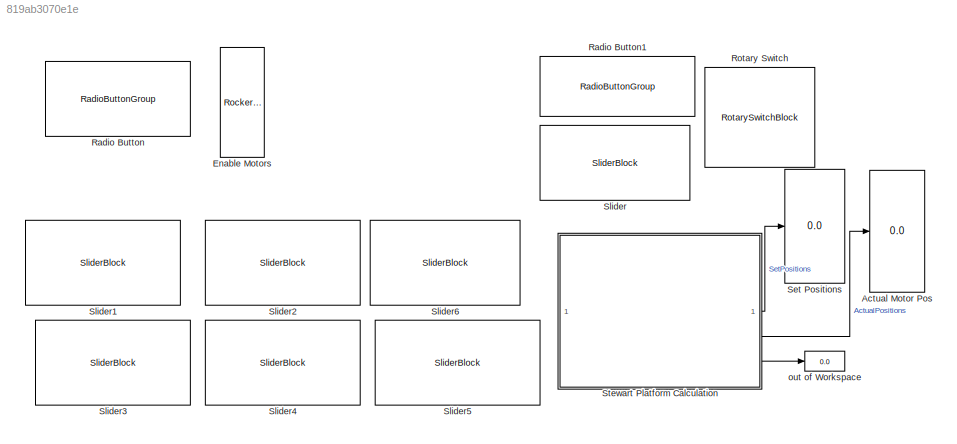
MODEL slx_819ab3070e1e
KIND model
CONFIG AbsTol = auto
CONFIG EnableMultiTasking = on
CONFIG FixedStep = 0.003
CONFIG MaxStep = auto
CONFIG MinStep = auto
CONFIG RelTol = 1e-3
CONFIG SampleTimeConstraint = Unconstrained
CONFIG SolverName = ode8
CONFIG StartTime = 0.0
CONFIG StopTime = inf
BLOCK [Display] Actual Motor Pos
  Decimation = 1
BLOCK [RockerSwitchBlock] Enable Motors
  LabelPosition = Hide
BLOCK [RadioButtonGroup] Radio Button
  ButtonGroupName = Stewart Platform
  LabelPosition = Hide
  SelectedLabel = Manual Control Mode
BLOCK [RadioButtonGroup] Radio Button1
  ButtonGroupName = Circle Mode
  LabelPosition = Hide
  SelectedLabel = Positional Circular Move
BLOCK [RotarySwitchBlock] Rotary Switch
  LabelPosition = Bottom
BLOCK [Display] Set Positions
  Decimation = 1
BLOCK [SliderBlock] Slider
  ScaleMax = 30
BLOCK [SliderBlock] Slider1
  ScaleMax = 30
  ScaleMin = -30
  TickInterval = 10
BLOCK [SliderBlock] Slider2
  ScaleMax = 30
  ScaleMin = -30
  TickInterval = 10
BLOCK [SliderBlock] Slider3
  ScaleMax = 60
  ScaleMin = -60
  TickInterval = 20
BLOCK [SliderBlock] Slider4
  ScaleMax = 60
  ScaleMin = -60
  TickInterval = 20
BLOCK [SliderBlock] Slider5
  ScaleMax = 700
  ScaleMin = 500
BLOCK [SliderBlock] Slider6
  ScaleMax = 30
  ScaleMin = -30
  TickInterval = 10
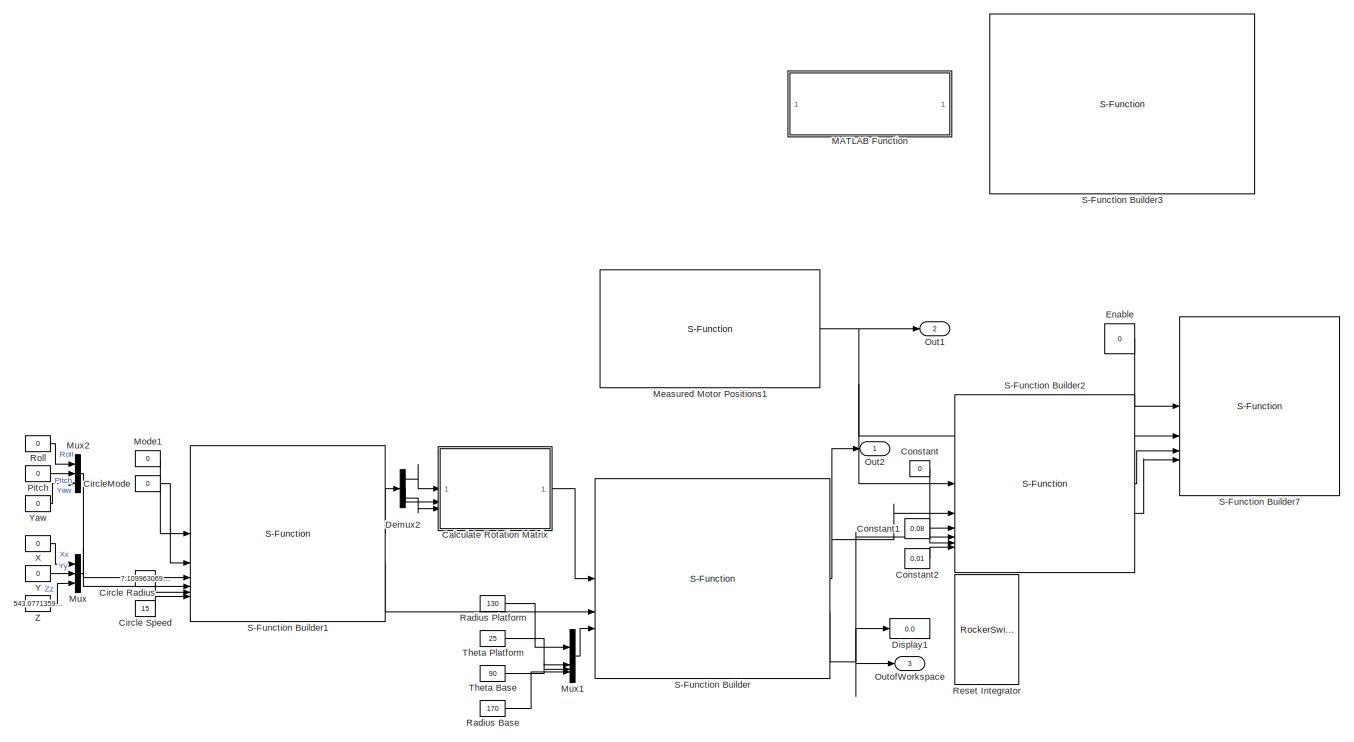
[diagram: Stewart Platform Calculation - part 1/2, full width, middle band]
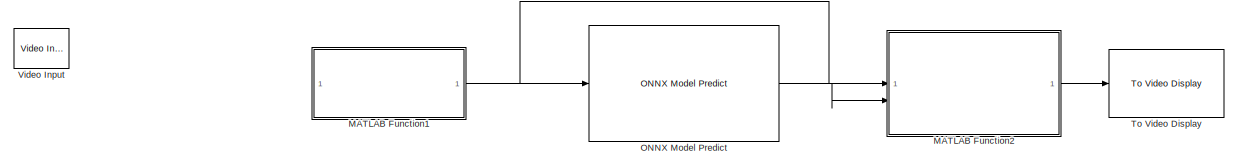
[diagram: Stewart Platform Calculation - part 2/2, full width, bottom band]
BLOCK [SubSystem] Stewart Platform Calculation
BLOCK [Constant] Stewart Platform Calculation/ X
  Value = 0
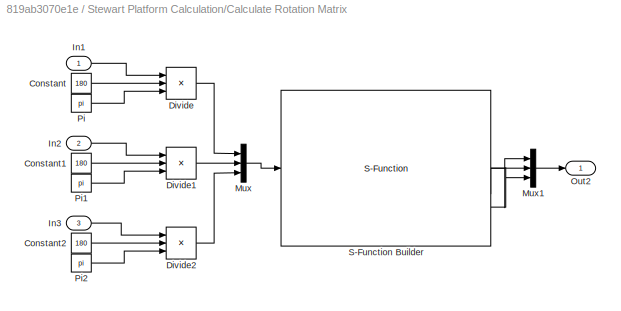
BLOCK [SubSystem] Stewart Platform Calculation/Calculate Rotation Matrix
BLOCK [Constant] Stewart Platform Calculation/Calculate Rotation Matrix/Constant
  SampleTime = -1
  Value = 180
BLOCK [Constant] Stewart Platform Calculation/Calculate Rotation Matrix/Constant1
  SampleTime = -1
  Value = 180
BLOCK [Constant] Stewart Platform Calculation/Calculate Rotation Matrix/Constant2
  SampleTime = -1
  Value = 180
BLOCK [Product] Stewart Platform Calculation/Calculate Rotation Matrix/Divide
  Inputs = */*
BLOCK [Product] Stewart Platform Calculation/Calculate Rotation Matrix/Divide1
  Inputs = */*
BLOCK [Product] Stewart Platform Calculation/Calculate Rotation Matrix/Divide2
  Inputs = */*
BLOCK [Inport] Stewart Platform Calculation/Calculate Rotation Matrix/In1
BLOCK [Inport] Stewart Platform Calculation/Calculate Rotation Matrix/In2
  Port = 2
BLOCK [Inport] Stewart Platform Calculation/Calculate Rotation Matrix/In3
  Port = 3
BLOCK [Mux] Stewart Platform Calculation/Calculate Rotation Matrix/Mux
  DisplayOption = bar
  Inputs = 3
BLOCK [Mux] Stewart Platform Calculation/Calculate Rotation Matrix/Mux1
  DisplayOption = bar
  Inputs = 3
BLOCK [Outport] Stewart Platform Calculation/Calculate Rotation Matrix/Out2
  VectorParamsAs1DForOutWhenUnconnected = off
BLOCK [Constant] Stewart Platform Calculation/Calculate Rotation Matrix/Pi
  SampleTime = -1
  Value = pi
BLOCK [Constant] Stewart Platform Calculation/Calculate Rotation Matrix/Pi1
  SampleTime = -1
  Value = pi
BLOCK [Constant] Stewart Platform Calculation/Calculate Rotation Matrix/Pi2
  SampleTime = -1
  Value = pi
BLOCK [S-Function] Stewart Platform Calculation/Calculate Rotation Matrix/S-Function Builder
  CopyFcn = set_param(gcbh,'LinkStatus','none')
  EnableBusSupport = off
  FunctionName = CalcRotationMatrix
  InitFcn = try, set_param(gcb,'FunctionName','CalcRotationMatrix'), end
  OpenFcn = sfunctionwizard(gcbh)
  PreSaveFcn = try, set_param(gcb,'FunctionName','CalcRotationMatrix'), end
  SFcnIsStateOwnerBlock = off
  SFunctionDeploymentMode = off
  SFunctionModules = CalcRotationMatrix_wrapper
BLOCK [Constant] Stewart Platform Calculation/Circle Radius
  Value = 7.109963069149833
BLOCK [Constant] Stewart Platform Calculation/Circle Speed
  Value = 15
BLOCK [Constant] Stewart Platform Calculation/CircleMode
  SampleTime = -1
  Value = 0
BLOCK [Constant] Stewart Platform Calculation/Constant
  Value = 0
BLOCK [Constant] Stewart Platform Calculation/Constant1
  Value = 0.08
BLOCK [Constant] Stewart Platform Calculation/Constant2
  Value = 0.01
BLOCK [Demux] Stewart Platform Calculation/Demux2
  Outputs = 3
BLOCK [Display] Stewart Platform Calculation/Display1
  Decimation = 1
BLOCK [Constant] Stewart Platform Calculation/Enable
  Value = 0
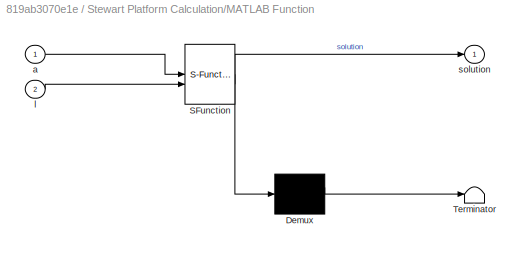
BLOCK [SubSystem] Stewart Platform Calculation/MATLAB Function
  Commented = on
  ErrorFcn = Stateflow.Translate.translate
  PermitHierarchicalResolution = ExplicitOnly
  SFBlockType = MATLAB Function
  TreatAsAtomicUnit = on
BLOCK [Demux] Stewart Platform Calculation/MATLAB Function/ Demux 
  Outputs = 1
BLOCK [S-Function] Stewart Platform Calculation/MATLAB Function/ SFunction 
  EnableBusSupport = off
  FunctionName = sf_sfun
  PortCounts = [2 2]
  SFcnIsStateOwnerBlock = off
  SFunctionDeploymentMode = off
  Tag = Stateflow S-Function 2
BLOCK [Terminator] Stewart Platform Calculation/MATLAB Function/ Terminator 
BLOCK [Inport] Stewart Platform Calculation/MATLAB Function/a
BLOCK [Inport] Stewart Platform Calculation/MATLAB Function/l
  Port = 2
BLOCK [Outport] Stewart Platform Calculation/MATLAB Function/solution
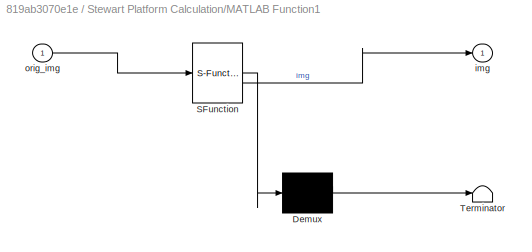
BLOCK [SubSystem] Stewart Platform Calculation/MATLAB Function1
  Commented = on
  ErrorFcn = Stateflow.Translate.translate
  PermitHierarchicalResolution = ExplicitOnly
  SFBlockType = MATLAB Function
  TreatAsAtomicUnit = on
BLOCK [Demux] Stewart Platform Calculation/MATLAB Function1/ Demux 
  Outputs = 1
BLOCK [S-Function] Stewart Platform Calculation/MATLAB Function1/ SFunction 
  EnableBusSupport = on
  FunctionName = sf_sfun
  PortCounts = [1 2]
  SFcnIsStateOwnerBlock = off
  SFunctionDeploymentMode = off
  Tag = Stateflow S-Function 1
BLOCK [Terminator] Stewart Platform Calculation/MATLAB Function1/ Terminator 
BLOCK [Outport] Stewart Platform Calculation/MATLAB Function1/img
BLOCK [Inport] Stewart Platform Calculation/MATLAB Function1/orig_img
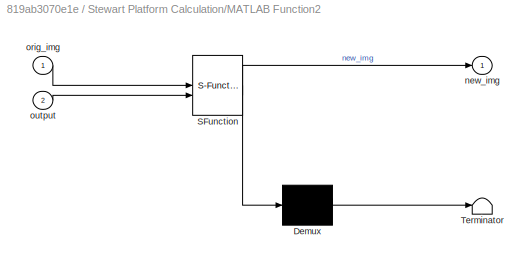
BLOCK [SubSystem] Stewart Platform Calculation/MATLAB Function2
  Commented = on
  ErrorFcn = Stateflow.Translate.translate
  PermitHierarchicalResolution = ExplicitOnly
  SFBlockType = MATLAB Function
  TreatAsAtomicUnit = on
BLOCK [Demux] Stewart Platform Calculation/MATLAB Function2/ Demux 
  Outputs = 1
BLOCK [S-Function] Stewart Platform Calculation/MATLAB Function2/ SFunction 
  EnableBusSupport = on
  FunctionName = sf_sfun
  PortCounts = [2 2]
  SFcnIsStateOwnerBlock = off
  SFunctionDeploymentMode = off
  Tag = Stateflow S-Function 3
BLOCK [Terminator] Stewart Platform Calculation/MATLAB Function2/ Terminator 
BLOCK [Outport] Stewart Platform Calculation/MATLAB Function2/new_img
BLOCK [Inport] Stewart Platform Calculation/MATLAB Function2/orig_img
BLOCK [Inport] Stewart Platform Calculation/MATLAB Function2/output
  Port = 2
BLOCK [S-Function] Stewart Platform Calculation/Measured Motor Positions1
  CopyFcn = set_param(gcbh,'LinkStatus','none')
  EnableBusSupport = off
  FunctionName = Read_Motor_Pos
  InitFcn = try, set_param(gcb,'FunctionName','Read_Motor_Pos'), end
  OpenFcn = sfunctionwizard(gcbh)
  PreSaveFcn = try, set_param(gcb,'FunctionName','Read_Motor_Pos'), end
  SFcnIsStateOwnerBlock = off
  SFunctionDeploymentMode = off
  SFunctionModules = Read_Motor_Pos_wrapper.c
BLOCK [Constant] Stewart Platform Calculation/Mode1
  SampleTime = -1
  Value = 0
BLOCK [Mux] Stewart Platform Calculation/Mux
  DisplayOption = bar
  Inputs = 3
BLOCK [Mux] Stewart Platform Calculation/Mux1
  DisplayOption = bar
BLOCK [Mux] Stewart Platform Calculation/Mux2
  DisplayOption = bar
  Inputs = 3
BLOCK [Reference] Stewart Platform Calculation/ONNX Model Predict  REF=pycoexlib/ONNX Model Predict
  Commented = on
  SourceBlock = pycoexlib/ONNX Model Predict
  SourceType = ONNXModelPredict
BLOCK [Outport] Stewart Platform Calculation/Out1
  Port = 2
  VectorParamsAs1DForOutWhenUnconnected = off
BLOCK [Outport] Stewart Platform Calculation/Out2
  VectorParamsAs1DForOutWhenUnconnected = off
BLOCK [Outport] Stewart Platform Calculation/OutofWorkspace
  Port = 3
  VectorParamsAs1DForOutWhenUnconnected = off
BLOCK [Constant] Stewart Platform Calculation/Pitch
  SampleTime = -1
  Value = 0
BLOCK [Constant] Stewart Platform Calculation/Radius Base
  Value = 170
BLOCK [Constant] Stewart Platform Calculation/Radius Platform
  Value = 130
BLOCK [RockerSwitchBlock] Stewart Platform Calculation/Reset Integrator
  LabelPosition = Hide
BLOCK [Constant] Stewart Platform Calculation/Roll
  SampleTime = -1
  Value = 0
BLOCK [S-Function] Stewart Platform Calculation/S-Function Builder
  CopyFcn = set_param(gcbh,'LinkStatus','none')
  EnableBusSupport = off
  FunctionName = Stewart_Inverse_Kin
  InitFcn = try, set_param(gcb,'FunctionName','Stewart_Inverse_Kin'), end
  OpenFcn = sfunctionwizard(gcbh)
  PreSaveFcn = try, set_param(gcb,'FunctionName','Stewart_Inverse_Kin'), end
  SFcnIsStateOwnerBlock = off
  SFunctionDeploymentMode = off
  SFunctionModules = Stewart_Inverse_Kin_wrapper
BLOCK [S-Function] Stewart Platform Calculation/S-Function Builder1
  CopyFcn = set_param(gcbh,'LinkStatus','none')
  EnableBusSupport = off
  FunctionName = SelectionMode
  InitFcn = try, set_param(gcb,'FunctionName','SelectionMode'), end
  OpenFcn = sfunctionwizard(gcbh)
  PreSaveFcn = try, set_param(gcb,'FunctionName','SelectionMode'), end
  SFcnIsStateOwnerBlock = off
  SFunctionDeploymentMode = off
  SFunctionModules = SelectionMode_wrapper
BLOCK [S-Function] Stewart Platform Calculation/S-Function Builder2
  CopyFcn = set_param(gcbh,'LinkStatus','none')
  EnableBusSupport = off
  FunctionName = PI_Control
  InitFcn = try, set_param(gcb,'FunctionName','PI_Control'), end
  OpenFcn = sfunctionwizard(gcbh)
  PreSaveFcn = try, set_param(gcb,'FunctionName','PI_Control'), end
  SFcnIsStateOwnerBlock = off
  SFunctionDeploymentMode = off
  SFunctionModules = PI_Control_wrapper
BLOCK [S-Function] Stewart Platform Calculation/S-Function Builder3
  Commented = on
  CopyFcn = set_param(gcbh,'LinkStatus','none')
  EnableBusSupport = off
  FunctionName = Stewart_Forward_Kin
  OpenFcn = sfunctionwizard(gcbh)
  SFcnIsStateOwnerBlock = off
  SFunctionDeploymentMode = off
  SFunctionModules = Stewart_Forward_Kin_wrapper.c
BLOCK [S-Function] Stewart Platform Calculation/S-Function Builder7
  CopyFcn = set_param(gcbh,'LinkStatus','none')
  EnableBusSupport = off
  FunctionName = Write_to_motors
  InitFcn = try, set_param(gcb,'FunctionName','Write_to_motors'), end
  OpenFcn = sfunctionwizard(gcbh)
  PreSaveFcn = try, set_param(gcb,'FunctionName','Write_to_motors'), end
  SFcnIsStateOwnerBlock = off
  SFunctionDeploymentMode = off
  SFunctionModules = Write_to_motors_wrapper
BLOCK [Constant] Stewart Platform Calculation/Theta Base
  Value = 90
BLOCK [Constant] Stewart Platform Calculation/Theta Platform
  Value = 25
BLOCK [Reference] Stewart Platform Calculation/To Video Display  REF=visionsinks/To Video Display
  Commented = on
  SourceBlock = visionsinks/To Video Display
  SourceType = To Video Display
BLOCK [Reference] Stewart Platform Calculation/Video Input  REF=sldrtlib/Video Input
  AttributesFormatString = Camera [1]
  Commented = on
  SourceBlock = sldrtlib/Video Input
  SourceType = Simulink Desktop Real-Time Video Input
BLOCK [Constant] Stewart Platform Calculation/Y
  Value = 0
BLOCK [Constant] Stewart Platform Calculation/Yaw
  SampleTime = -1
  Value = 0
BLOCK [Constant] Stewart Platform Calculation/Z
  Value = 543.0771359249793
BLOCK [Display] out of Workspace
  Decimation = 1
LINE Stewart Platform Calculation/ X:1 -> Stewart Platform Calculation/Mux:1
LINE Stewart Platform Calculation/Calculate Rotation Matrix/Constant1:1 -> Stewart Platform Calculation/Calculate Rotation Matrix/Divide1:2
LINE Stewart Platform Calculation/Calculate Rotation Matrix/Constant2:1 -> Stewart Platform Calculation/Calculate Rotation Matrix/Divide2:2
LINE Stewart Platform Calculation/Calculate Rotation Matrix/Constant:1 -> Stewart Platform Calculation/Calculate Rotation Matrix/Divide:2
LINE Stewart Platform Calculation/Calculate Rotation Matrix/Divide1:1 -> Stewart Platform Calculation/Calculate Rotation Matrix/Mux:2
LINE Stewart Platform Calculation/Calculate Rotation Matrix/Divide2:1 -> Stewart Platform Calculation/Calculate Rotation Matrix/Mux:3
LINE Stewart Platform Calculation/Calculate Rotation Matrix/Divide:1 -> Stewart Platform Calculation/Calculate Rotation Matrix/Mux:1
LINE Stewart Platform Calculation/Calculate Rotation Matrix/In1:1 -> Stewart Platform Calculation/Calculate Rotation Matrix/Divide:1
LINE Stewart Platform Calculation/Calculate Rotation Matrix/In2:1 -> Stewart Platform Calculation/Calculate Rotation Matrix/Divide1:1
LINE Stewart Platform Calculation/Calculate Rotation Matrix/In3:1 -> Stewart Platform Calculation/Calculate Rotation Matrix/Divide2:1
LINE Stewart Platform Calculation/Calculate Rotation Matrix/Mux1:1 -> Stewart Platform Calculation/Calculate Rotation Matrix/Out2:1
LINE Stewart Platform Calculation/Calculate Rotation Matrix/Mux:1 -> Stewart Platform Calculation/Calculate Rotation Matrix/S-Function Builder:1
LINE Stewart Platform Calculation/Calculate Rotation Matrix/Pi1:1 -> Stewart Platform Calculation/Calculate Rotation Matrix/Divide1:3
LINE Stewart Platform Calculation/Calculate Rotation Matrix/Pi2:1 -> Stewart Platform Calculation/Calculate Rotation Matrix/Divide2:3
LINE Stewart Platform Calculation/Calculate Rotation Matrix/Pi:1 -> Stewart Platform Calculation/Calculate Rotation Matrix/Divide:3
LINE Stewart Platform Calculation/Calculate Rotation Matrix/S-Function Builder:1 -> Stewart Platform Calculation/Calculate Rotation Matrix/Mux1:1
LINE Stewart Platform Calculation/Calculate Rotation Matrix/S-Function Builder:2 -> Stewart Platform Calculation/Calculate Rotation Matrix/Mux1:2
LINE Stewart Platform Calculation/Calculate Rotation Matrix/S-Function Builder:3 -> Stewart Platform Calculation/Calculate Rotation Matrix/Mux1:3
LINE Stewart Platform Calculation/Calculate Rotation Matrix:1 -> Stewart Platform Calculation/S-Function Builder:1
LINE Stewart Platform Calculation/Circle Radius:1 -> Stewart Platform Calculation/S-Function Builder1:5
LINE Stewart Platform Calculation/Circle Speed:1 -> Stewart Platform Calculation/S-Function Builder1:6
LINE Stewart Platform Calculation/CircleMode:1 -> Stewart Platform Calculation/S-Function Builder1:2
LINE Stewart Platform Calculation/Constant1:1 -> Stewart Platform Calculation/S-Function Builder2:5
LINE Stewart Platform Calculation/Constant2:1 -> Stewart Platform Calculation/S-Function Builder2:6
LINE Stewart Platform Calculation/Constant:1 -> Stewart Platform Calculation/S-Function Builder2:3
LINE Stewart Platform Calculation/Demux2:1 -> Stewart Platform Calculation/Calculate Rotation Matrix:1
LINE Stewart Platform Calculation/Demux2:2 -> Stewart Platform Calculation/Calculate Rotation Matrix:2
LINE Stewart Platform Calculation/Demux2:3 -> Stewart Platform Calculation/Calculate Rotation Matrix:3
LINE Stewart Platform Calculation/Enable:1 -> Stewart Platform Calculation/S-Function Builder7:1
NET Stewart Platform Calculation/MATLAB Function1:1 -> Stewart Platform Calculation/MATLAB Function2:1, Stewart Platform Calculation/ONNX Model Predict:1
LINE Stewart Platform Calculation/MATLAB Function2:1 -> Stewart Platform Calculation/To Video Display:1
NET Stewart Platform Calculation/Measured Motor Positions1:1 -> Stewart Platform Calculation/Out1:1, Stewart Platform Calculation/S-Function Builder2:1, Stewart Platform Calculation/S-Function Builder7:2
LINE Stewart Platform Calculation/Mode1:1 -> Stewart Platform Calculation/S-Function Builder1:1
LINE Stewart Platform Calculation/Mux1:1 -> Stewart Platform Calculation/S-Function Builder:3
LINE Stewart Platform Calculation/Mux2:1 -> Stewart Platform Calculation/S-Function Builder1:3
LINE Stewart Platform Calculation/Mux:1 -> Stewart Platform Calculation/S-Function Builder1:4
LINE Stewart Platform Calculation/ONNX Model Predict:1 -> Stewart Platform Calculation/MATLAB Function2:2
LINE Stewart Platform Calculation/Pitch:1 -> Stewart Platform Calculation/Mux2:2
LINE Stewart Platform Calculation/Radius Base:1 -> Stewart Platform Calculation/Mux1:4
LINE Stewart Platform Calculation/Radius Platform:1 -> Stewart Platform Calculation/Mux1:1
LINE Stewart Platform Calculation/Roll:1 -> Stewart Platform Calculation/Mux2:1
LINE Stewart Platform Calculation/S-Function Builder1:1 -> Stewart Platform Calculation/Demux2:1
LINE Stewart Platform Calculation/S-Function Builder1:2 -> Stewart Platform Calculation/S-Function Builder:2
LINE Stewart Platform Calculation/S-Function Builder2:1 -> Stewart Platform Calculation/S-Function Builder7:3
LINE Stewart Platform Calculation/S-Function Builder2:2 -> Stewart Platform Calculation/S-Function Builder7:4
NET Stewart Platform Calculation/S-Function Builder:1 -> Stewart Platform Calculation/Out2:1, Stewart Platform Calculation/S-Function Builder2:2
NET Stewart Platform Calculation/S-Function Builder:2 -> Stewart Platform Calculation/Display1:1, Stewart Platform Calculation/OutofWorkspace:1, Stewart Platform Calculation/S-Function Builder2:4
LINE Stewart Platform Calculation/Theta Base:1 -> Stewart Platform Calculation/Mux1:3
LINE Stewart Platform Calculation/Theta Platform:1 -> Stewart Platform Calculation/Mux1:2
LINE Stewart Platform Calculation/Y:1 -> Stewart Platform Calculation/Mux:2
LINE Stewart Platform Calculation/Yaw:1 -> Stewart Platform Calculation/Mux2:3
LINE Stewart Platform Calculation/Z:1 -> Stewart Platform Calculation/Mux:3
LINE Stewart Platform Calculation:1 -> Set Positions:1
LINE Stewart Platform Calculation:2 -> Actual Motor Pos:1
LINE Stewart Platform Calculation:3 -> out of Workspace:1
note: NET lines group one-source signal fan-out (src -> all destinations, sorted); 1:1 wires keep LINE
CHART Stewart Platform Calculation/MATLAB Function1 states=1 transitions=1
  STATE_LABEL 'eML_blk_kernel()'
  STATE_LABEL 'SCRIPT:\nfunction img = preProcess(orig_img)\n% 240,320,3\nimg=double(orig_img)/255.0;\n'
CHART Stewart Platform Calculation/MATLAB Function states=1 transitions=1
  STATE_LABEL 'eML_blk_kernel()'
  STATE_LABEL 'SCRIPT:\n\nfunction solution = stewart_forward(a,l)\n\n    num=0;\n    tolf = 1e-6;\n    tola = 1e-6;\n    maxiter = 1e3;\n    platform_parameters=[130,25,90,170]; %p r, p theta, b theta, b r\n    top_offset = [0;0;62];\n    base_offset = [0;0;57];\n\n    while num<maxiter\n        % convert deg to rad\n        gamma=a(4)*pi/180;\n        beta=a(5)*pi/180;\n        alpha=a(6)*pi/180;\n    \n        sumf=0; % to sum...<+2677ch>'
CHART Stewart Platform Calculation/MATLAB Function2 states=1 transitions=1
  STATE_LABEL 'eML_blk_kernel()'
  STATE_LABEL "SCRIPT:\nfunction new_img = postProcess(orig_img,output)\n\n    orig_img = permute(orig_img,[3,1,2]);\n    c = orig_img(1,:,:)+output;\n    orig_img(1,:,:) = c./max(c,[],'all');\n\n    orig_img = permute(orig_img,[2,3,1]);\n    new_img = uint8(round(orig_img*255));"
CHART  states=0 transitions=0
CHART  states=0 transitions=0
CHART  states=0 transitions=0
